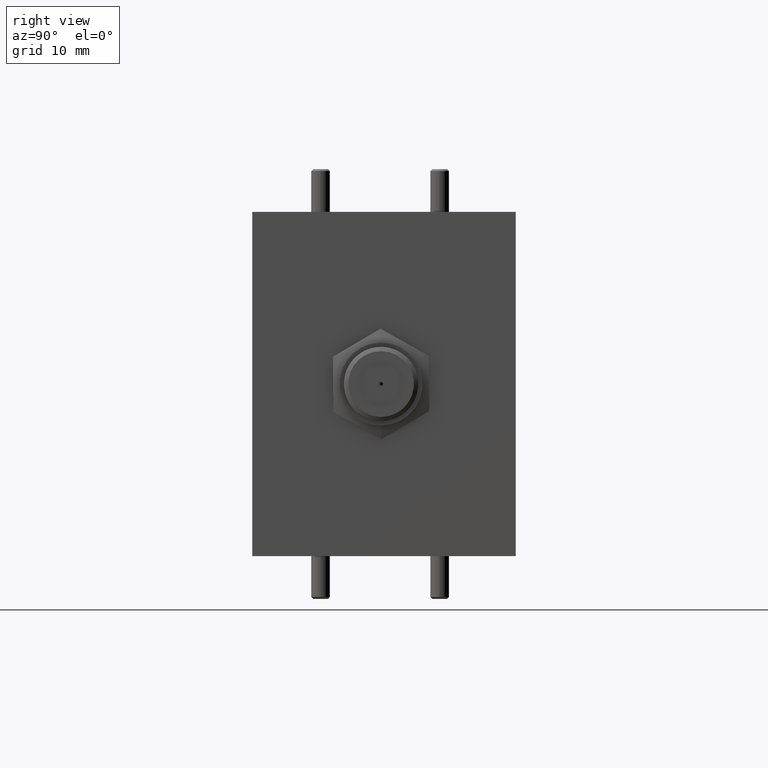
[diagram: clean part render]
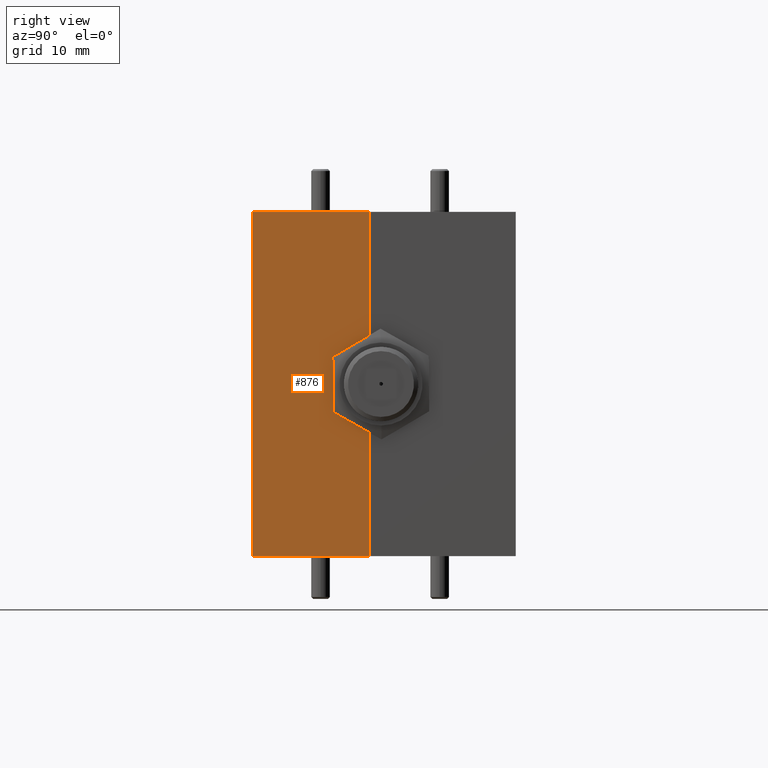
[diagram: same view with one face highlighted and labeled with its STEP entity id]
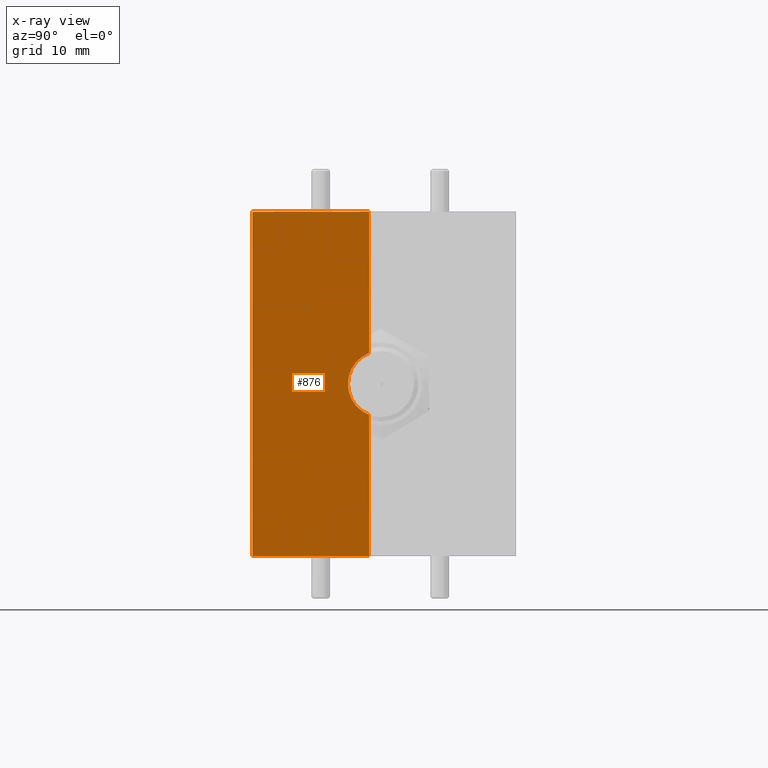
[diagram: x-ray of the same camera — body ghosted, the highlighted face saturated]
A machine part, right view. The second image highlights one B-rep face of the part: STEP entity #876.
The next image is the same camera in x-ray: the body ghosted, the highlighted face saturated — about 0% of this face is hidden behind the body in this view.
In plain terms, the highlighted planar face has unit normal (-1, 0, 0).
Its self-contained STEP definition (entity closure, byte-faithful):
#244 = CARTESIAN_POINT ( 'NONE',  ( 0.5749999999999994005, 0.0000000000000000000, -0.5750000000000003997 ) ) ;
#760 = VERTEX_POINT ( 'NONE', #9367 ) ;
#876 = ADVANCED_FACE ( 'NONE', ( #26327 ), #10887, .F. ) ;
#1996 = DIRECTION ( 'NONE',  ( 0.0000000000000000000, 0.0000000000000000000, -1.000000000000000000 ) ) ;
#2682 = DIRECTION ( 'NONE',  ( 0.0000000000000000000, 0.0000000000000000000, 1.000000000000000000 ) ) ;
#5163 = DIRECTION ( 'NONE',  ( 1.000000000000000000, 0.0000000000000000000, 0.0000000000000000000 ) ) ;
#5788 = VERTEX_POINT ( 'NONE', #20801 ) ;
#5839 = CARTESIAN_POINT ( 'NONE',  ( 0.5749999999999994005, 0.0000000000000000000, 0.5749999999999995115 ) ) ;
#6082 = CARTESIAN_POINT ( 'NONE',  ( 0.5749999999999994005, 0.0000000000000000000, 0.5749999999999995115 ) ) ;
#7632 = CARTESIAN_POINT ( 'NONE',  ( 0.5749999999999994005, 0.0000000000000000000, -0.5750000000000003997 ) ) ;
#7766 = AXIS2_PLACEMENT_3D ( 'NONE', #41136, #5163, #36517 ) ;
#9367 = CARTESIAN_POINT ( 'NONE',  ( 0.5749999999999994005, -0.3900000000000000133, -0.5750000000000003997 ) ) ;
#10176 = EDGE_CURVE ( 'NONE', #42508, #5788, #29222, .T. ) ;
#10887 = PLANE ( 'NONE',  #42932 ) ;
#11361 = DIRECTION ( 'NONE',  ( -0.0000000000000000000, -1.000000000000000000, -0.0000000000000000000 ) ) ;
#11612 = LINE ( 'NONE', #30903, #12797 ) ;
#12627 = EDGE_CURVE ( 'NONE', #15295, #760, #35449, .T. ) ;
#12797 = VECTOR ( 'NONE', #11361, 39.37007874015748143 ) ;
#15295 = VERTEX_POINT ( 'NONE', #7632 ) ;
#15303 = EDGE_CURVE ( 'NONE', #44398, #760, #24846, .T. ) ;
#17799 = VECTOR ( 'NONE', #50611, 39.37007874015748143 ) ;
#17804 = ORIENTED_EDGE ( 'NONE', *, *, #18651, .F. ) ;
#18651 = EDGE_CURVE ( 'NONE', #5788, #40583, #29952, .T. ) ;
#20801 = CARTESIAN_POINT ( 'NONE',  ( 0.5749999999999997335, 0.0000000000000000000, 0.1030060677824369830 ) ) ;
#23180 = ORIENTED_EDGE ( 'NONE', *, *, #15303, .T. ) ;
#23374 = ORIENTED_EDGE ( 'NONE', *, *, #12627, .F. ) ;
#24355 = DIRECTION ( 'NONE',  ( 0.0000000000000000000, 0.0000000000000000000, -1.000000000000000000 ) ) ;
#24846 = LINE ( 'NONE', #40505, #26634 ) ;
#25391 = LINE ( 'NONE', #5839, #30975 ) ;
#26327 = FACE_OUTER_BOUND ( 'NONE', #37238, .T. ) ;
#26570 = CARTESIAN_POINT ( 'NONE',  ( 0.5749999999999994005, 0.0000000000000000000, 0.5749999999999995115 ) ) ;
#26634 = VECTOR ( 'NONE', #24355, 39.37007874015748143 ) ;
#28841 = ORIENTED_EDGE ( 'NONE', *, *, #40196, .T. ) ;
#29222 = LINE ( 'NONE', #37156, #49565 ) ;
#29952 = CIRCLE ( 'NONE', #7766, 0.1105000000000000010 ) ;
#30464 = CARTESIAN_POINT ( 'NONE',  ( 0.5749999999999997335, 0.0000000000000000000, -0.1030060677824369830 ) ) ;
#30695 = DIRECTION ( 'NONE',  ( -1.000000000000000000, 0.0000000000000000000, 0.0000000000000000000 ) ) ;
#30903 = CARTESIAN_POINT ( 'NONE',  ( 0.5749999999999994005, 0.0000000000000000000, 0.5749999999999995115 ) ) ;
#30975 = VECTOR ( 'NONE', #1996, 39.37007874015748143 ) ;
#31296 = CARTESIAN_POINT ( 'NONE',  ( 0.5749999999999994005, -0.3900000000000000133, 0.5749999999999995115 ) ) ;
#35449 = LINE ( 'NONE', #244, #17799 ) ;
#36517 = DIRECTION ( 'NONE',  ( 0.0000000000000000000, 0.0000000000000000000, -1.000000000000000000 ) ) ;
#37156 = CARTESIAN_POINT ( 'NONE',  ( 0.5749999999999994005, 0.0000000000000000000, 0.5749999999999995115 ) ) ;
#37238 = EDGE_LOOP ( 'NONE', ( #50439, #17804, #39856, #28841, #23180, #23374 ) ) ;
#39856 = ORIENTED_EDGE ( 'NONE', *, *, #10176, .F. ) ;
#40196 = EDGE_CURVE ( 'NONE', #42508, #44398, #11612, .T. ) ;
#40505 = CARTESIAN_POINT ( 'NONE',  ( 0.5749999999999994005, -0.3900000000000000133, 0.5749999999999995115 ) ) ;
#40583 = VERTEX_POINT ( 'NONE', #30464 ) ;
#41136 = CARTESIAN_POINT ( 'NONE',  ( 0.5749999999999997335, 0.03999999999999998002, 0.0000000000000000000 ) ) ;
#41264 = DIRECTION ( 'NONE',  ( 0.0000000000000000000, 0.0000000000000000000, -1.000000000000000000 ) ) ;
#42508 = VERTEX_POINT ( 'NONE', #6082 ) ;
#42542 = EDGE_CURVE ( 'NONE', #40583, #15295, #25391, .T. ) ;
#42932 = AXIS2_PLACEMENT_3D ( 'NONE', #26570, #30695, #2682 ) ;
#44398 = VERTEX_POINT ( 'NONE', #31296 ) ;
#49565 = VECTOR ( 'NONE', #41264, 39.37007874015748143 ) ;
#50439 = ORIENTED_EDGE ( 'NONE', *, *, #42542, .F. ) ;
#50611 = DIRECTION ( 'NONE',  ( -0.0000000000000000000, -1.000000000000000000, -0.0000000000000000000 ) ) ;